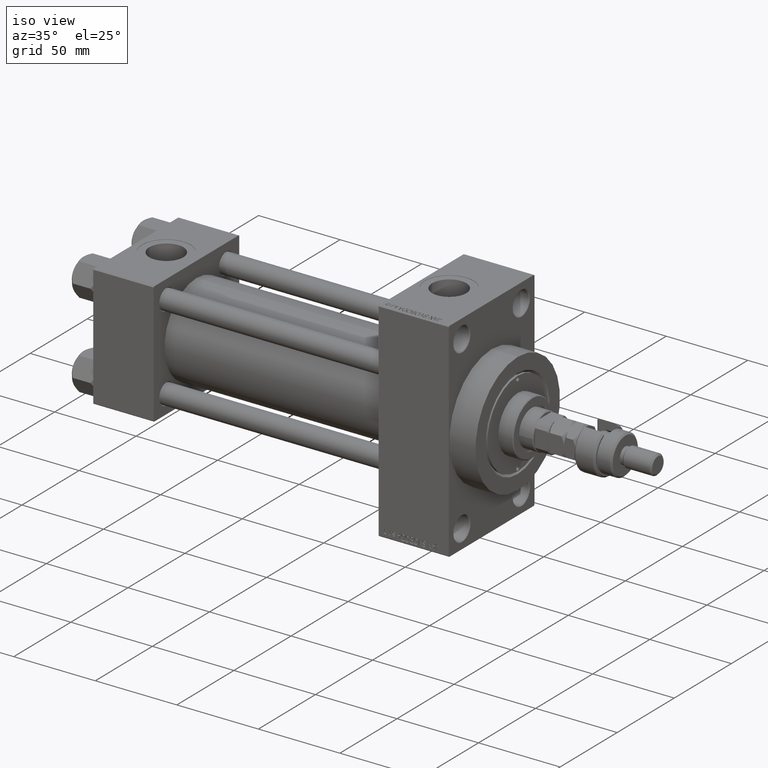
[diagram: clean part render]
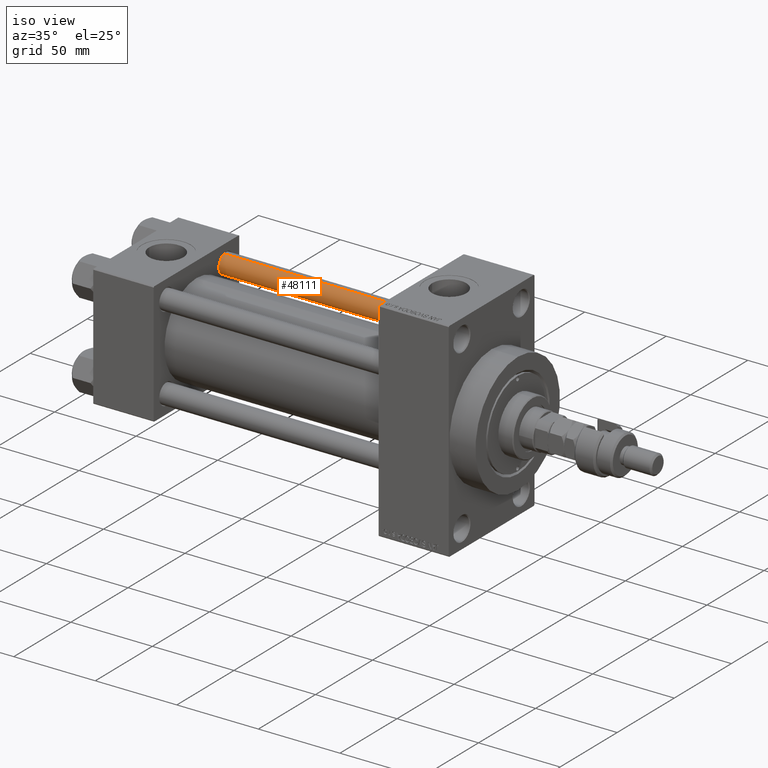
[diagram: same view with one face highlighted and labeled with its STEP entity id]
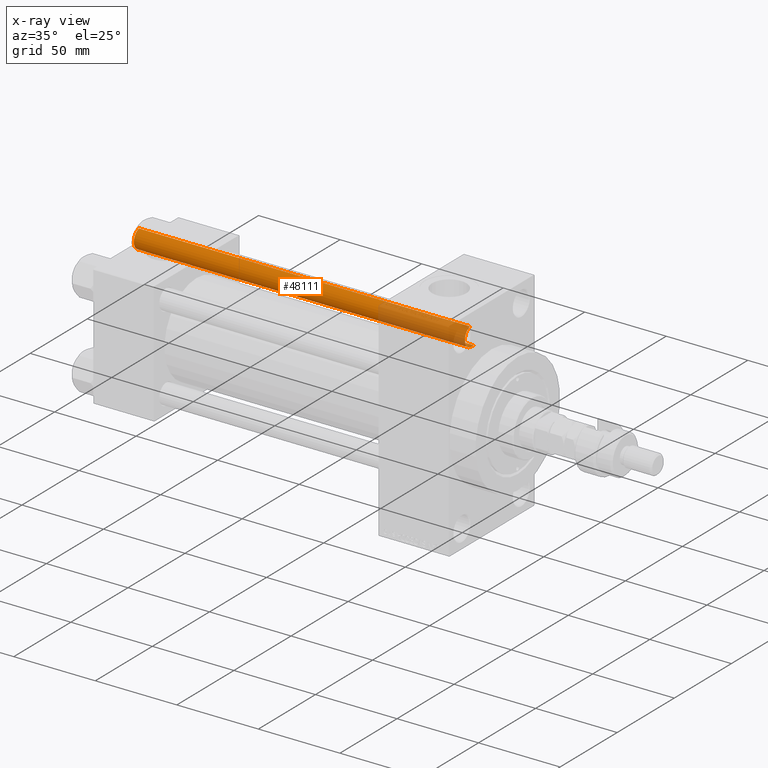
[diagram: x-ray of the same camera — body ghosted, the highlighted face saturated]
A machine part, iso view. The second image highlights one B-rep face of the part: STEP entity #48111.
The next image is the same camera in x-ray: the body ghosted, the highlighted face saturated — about 27% of this face is hidden behind the body in this view.
In plain terms, the highlighted cylindrical surface (edge-blend (fillet) strip) has radius 6 mm, axis along (-1, -0, 0).
Its self-contained STEP definition (entity closure, byte-faithful):
#1849 = DIRECTION ( 'NONE',  ( -1.000000000000000000, 0.000000000000000000, 0.000000000000000000 ) ) ;
#5291 = LINE ( 'NONE', #17483, #42238 ) ;
#7390 = EDGE_CURVE ( 'NONE', #21334, #22744, #5291, .T. ) ;
#8632 = CARTESIAN_POINT ( 'NONE',  ( 6.000000000000000888, 7.347880794884120722E-16, 0.5000000000000281997 ) ) ;
#10040 = EDGE_LOOP ( 'NONE', ( #15235, #35684, #41909, #27591 ) ) ;
#10941 = VERTEX_POINT ( 'NONE', #8632 ) ;
#13673 = DIRECTION ( 'NONE',  ( -0.000000000000000000, -0.000000000000000000, -1.000000000000000000 ) ) ;
#15235 = ORIENTED_EDGE ( 'NONE', *, *, #46233, .F. ) ;
#17325 = FACE_OUTER_BOUND ( 'NONE', #10040, .T. ) ;
#17483 = CARTESIAN_POINT ( 'NONE',  ( -6.000000000000000888, 0.000000000000000000, 204.0000000000000000 ) ) ;
#19272 = VECTOR ( 'NONE', #29916, 1000.000000000000000 ) ;
#20212 = CARTESIAN_POINT ( 'NONE',  ( 0.000000000000000000, 0.000000000000000000, 0.5000000000000281997 ) ) ;
#21334 = VERTEX_POINT ( 'NONE', #31334 ) ;
#22392 = AXIS2_PLACEMENT_3D ( 'NONE', #20212, #35677, #37685 ) ;
#22744 = VERTEX_POINT ( 'NONE', #32286 ) ;
#25883 = LINE ( 'NONE', #30169, #19272 ) ;
#27591 = ORIENTED_EDGE ( 'NONE', *, *, #44185, .T. ) ;
#28218 = AXIS2_PLACEMENT_3D ( 'NONE', #40675, #33294, #40418 ) ;
#29916 = DIRECTION ( 'NONE',  ( -0.000000000000000000, -0.000000000000000000, -1.000000000000000000 ) ) ;
#29992 = CYLINDRICAL_SURFACE ( 'NONE', #33114, 6.000000000000000888 ) ;
#30169 = CARTESIAN_POINT ( 'NONE',  ( 6.000000000000000888, 7.347880794884120722E-16, 204.0000000000000000 ) ) ;
#31334 = CARTESIAN_POINT ( 'NONE',  ( -6.000000000000000888, 0.000000000000000000, 203.5000000000000000 ) ) ;
#32286 = CARTESIAN_POINT ( 'NONE',  ( -6.000000000000000888, 0.000000000000000000, 0.5000000000000281997 ) ) ;
#32806 = CARTESIAN_POINT ( 'NONE',  ( 0.000000000000000000, 0.000000000000000000, 204.0000000000000000 ) ) ;
#33114 = AXIS2_PLACEMENT_3D ( 'NONE', #32806, #36859, #1849 ) ;
#33294 = DIRECTION ( 'NONE',  ( 0.000000000000000000, 0.000000000000000000, -1.000000000000000000 ) ) ;
#35677 = DIRECTION ( 'NONE',  ( -0.000000000000000000, -0.000000000000000000, 1.000000000000000000 ) ) ;
#35684 = ORIENTED_EDGE ( 'NONE', *, *, #47290, .T. ) ;
#36764 = VERTEX_POINT ( 'NONE', #46752 ) ;
#36859 = DIRECTION ( 'NONE',  ( -0.000000000000000000, -0.000000000000000000, -1.000000000000000000 ) ) ;
#37685 = DIRECTION ( 'NONE',  ( 1.000000000000000000, 0.000000000000000000, 0.000000000000000000 ) ) ;
#37775 = CIRCLE ( 'NONE', #22392, 6.000000000000000888 ) ;
#40418 = DIRECTION ( 'NONE',  ( 1.000000000000000000, 0.000000000000000000, 0.000000000000000000 ) ) ;
#40675 = CARTESIAN_POINT ( 'NONE',  ( 0.000000000000000000, 0.000000000000000000, 203.5000000000000000 ) ) ;
#41909 = ORIENTED_EDGE ( 'NONE', *, *, #7390, .T. ) ;
#42238 = VECTOR ( 'NONE', #13673, 1000.000000000000000 ) ;
#42838 = CIRCLE ( 'NONE', #28218, 6.000000000000000888 ) ;
#44185 = EDGE_CURVE ( 'NONE', #22744, #10941, #37775, .T. ) ;
#46233 = EDGE_CURVE ( 'NONE', #36764, #10941, #25883, .T. ) ;
#46752 = CARTESIAN_POINT ( 'NONE',  ( 6.000000000000000888, 7.347880794884120722E-16, 203.5000000000000000 ) ) ;
#47290 = EDGE_CURVE ( 'NONE', #36764, #21334, #42838, .T. ) ;
#48111 = ADVANCED_FACE ( 'NONE', ( #17325 ), #29992, .T. ) ;